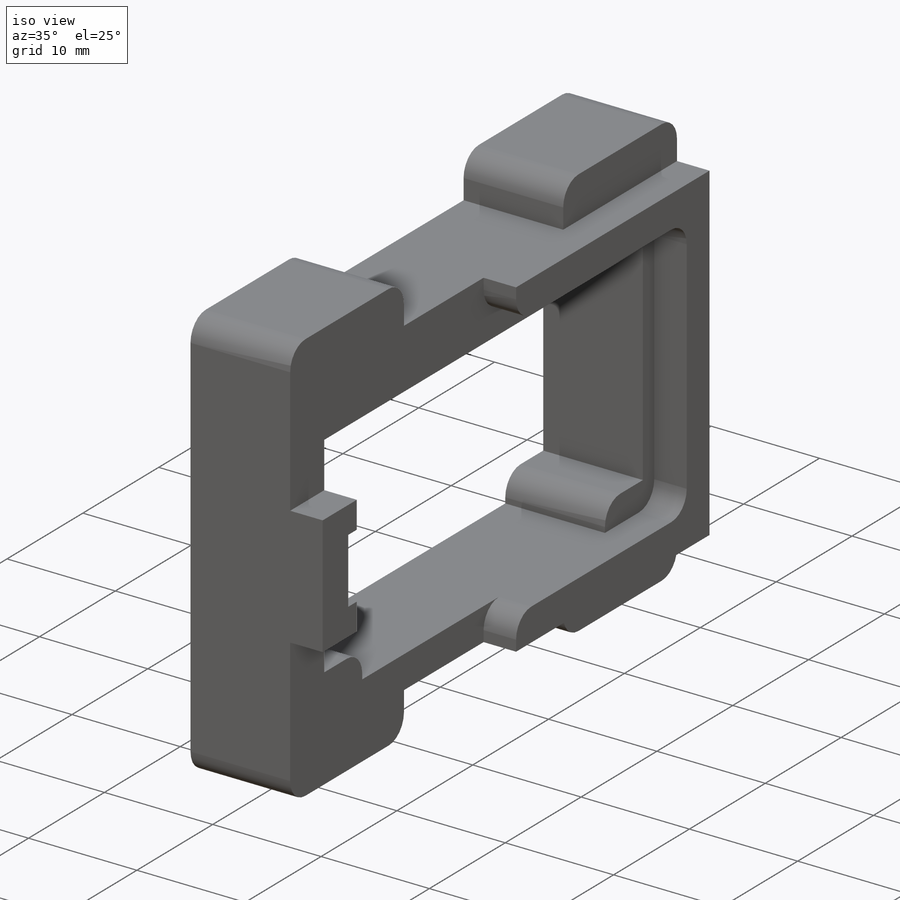
[diagram: iso view]
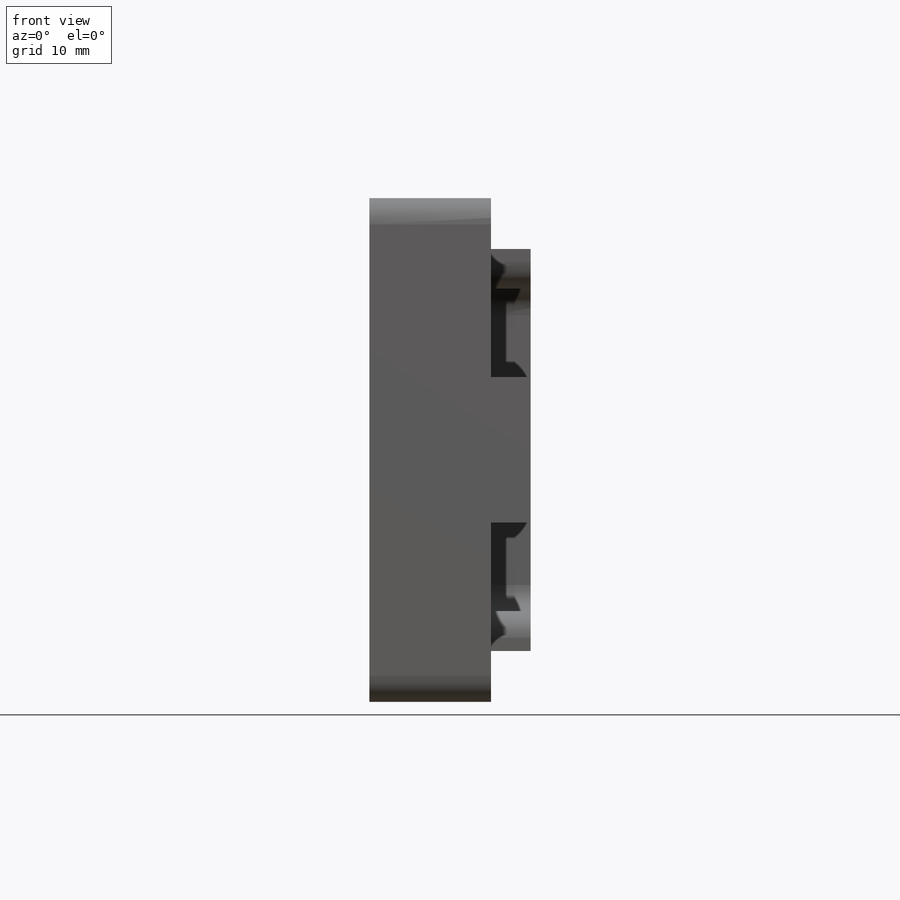
[diagram: front view]
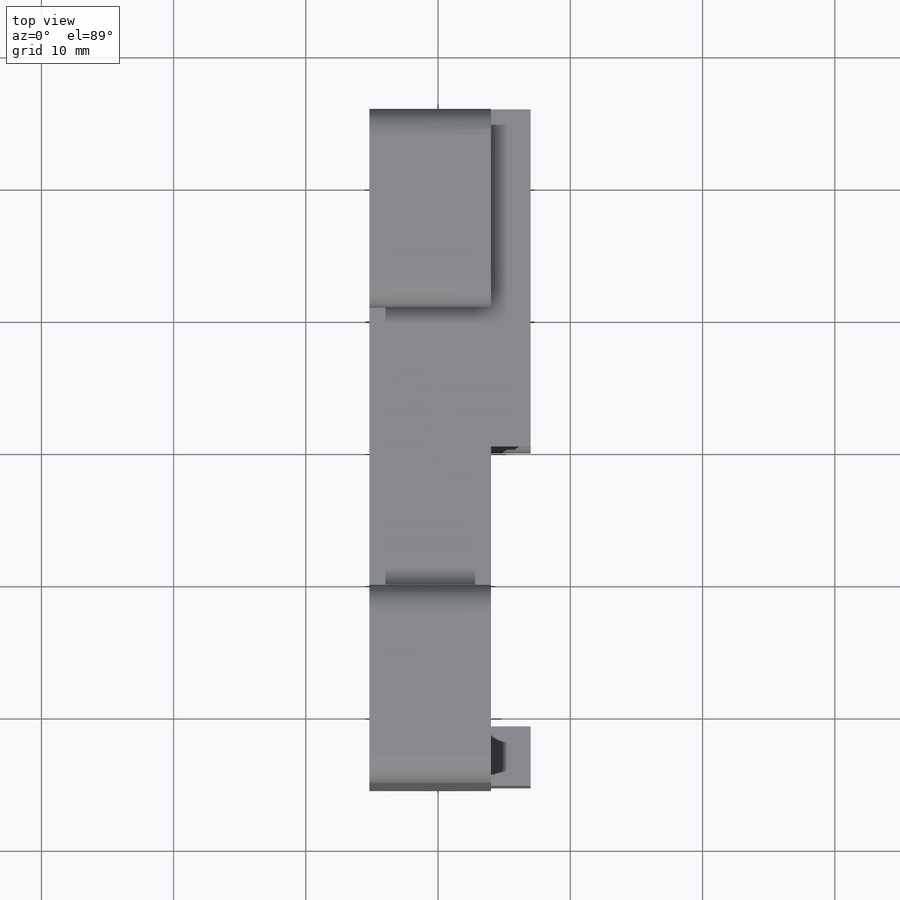
[diagram: top view]
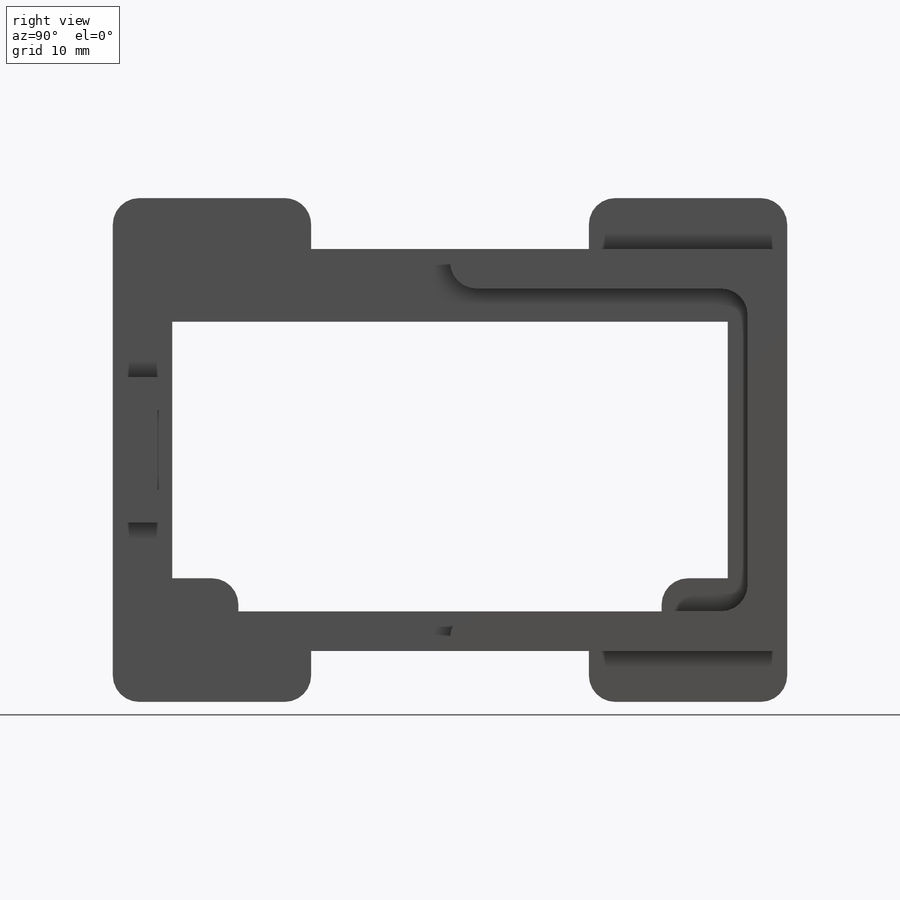
[diagram: right view]
SOLIDWORKS PART (.sldprt)
format: sldprt  version: not decoded by parser v0  size: 367,104 bytes
history: native  units: mm
features: sketch x5, extrude x4, material x1, cut_extrude x1, fillet x1 + 1 further entry (+17 scaffold rows collapsed; 3 parser-record rows omitted)
feature tree (33):
  scaffold x17  (default folders/planes/origin — collapsed)
  material  "ABS"
  "params_print"
  parser-record x3  (decoder bookkeeping rows leaked as tree rows — omitted from the tree; the rows remain in map.json)
  sketch  "Body"  dims[D4=17.0mm DynWidth=24.4mm DynHeight=45.0mm D3=10.0mm D1=2.5mm D5=3.0mm D6=2.5mm]
  extrude  "Main Body"  Depth=8mm
  sketch  "Sketch3"  dims[D1=45.0mm D2=24.4mm D3=0.75mm D4=11.0mm D5=6.0mm]
  extrude  "Clamp Walls"  Depth=3mm
  sketch  "Sketch4"  dims[D1=15.0mm D2=3.85mm D3=3.85mm]
  extrude  "Standoffs"  [1 undecoded]
  sketch  "Sketch5"  dims[D1=5.0mm]
  cut_extrude  "Clearance - MX Capacitor"  [1 undecoded]
  fillet  "Contouring"  Radius=2mm
  sketch  "Sketch6"  dims[D1=0.0mm D2=0.0mm]
  extrude  "Boss-Extrude1"  Depth=1.2mm
decode coverage: 9 of 11 modeling features carry decoded parameters; 1 rows unclassified (native names shown)
note: 2 parameter values undecoded
note: suppression state not decoded; provenance and decode notes live in map.json
